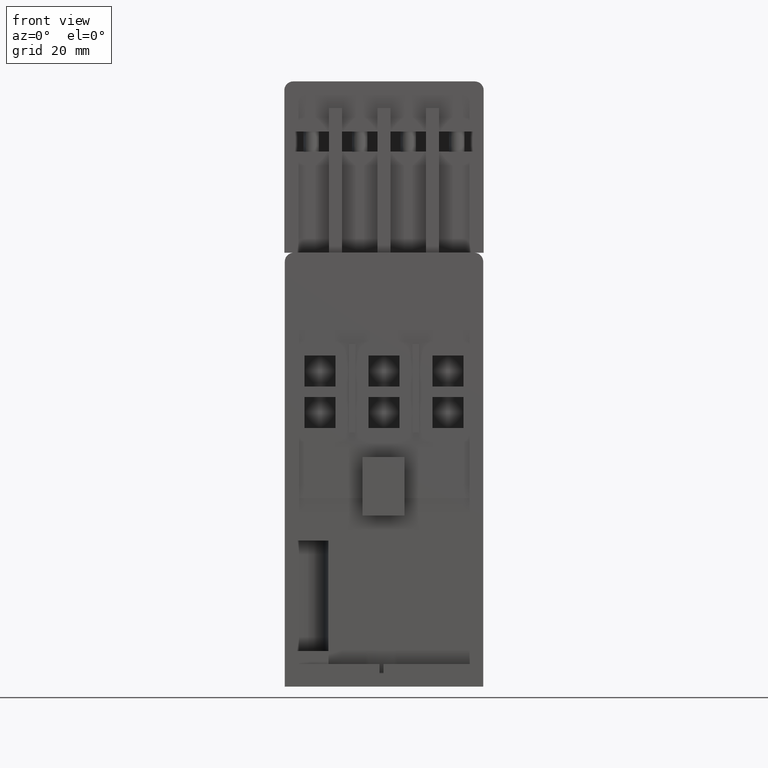
[diagram: clean part render]
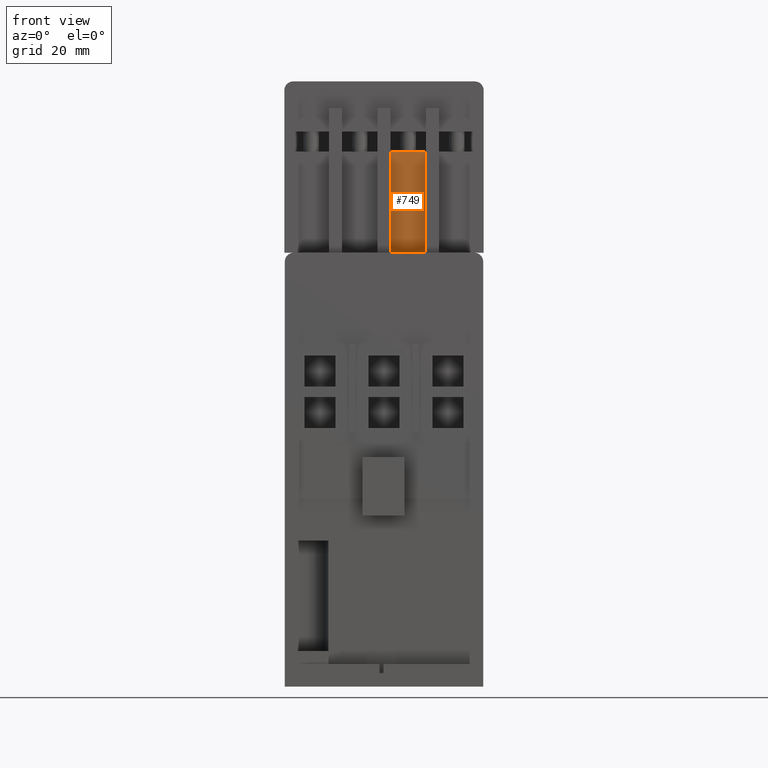
[diagram: same view with one face highlighted and labeled with its STEP entity id]
A machine part, front view. The second image highlights one B-rep face of the part: STEP entity #749.
In plain terms, the highlighted planar face has unit normal (0, 1, 0).
Its self-contained STEP definition (entity closure, byte-faithful):
#749=ADVANCED_FACE('',(#1866),#1334,.F.);
#1334=PLANE('',#12004);
#1866=FACE_OUTER_BOUND('',#2519,.T.);
#2519=EDGE_LOOP('',(#5013,#5014,#5015,#5016));
#5013=ORIENTED_EDGE('',*,*,#8194,.F.);
#5014=ORIENTED_EDGE('',*,*,#8282,.F.);
#5015=ORIENTED_EDGE('',*,*,#7239,.T.);
#5016=ORIENTED_EDGE('',*,*,#8283,.T.);
#6177=VERTEX_POINT('',#15375);
#6178=VERTEX_POINT('',#15377);
#6819=VERTEX_POINT('',#17334);
#6820=VERTEX_POINT('',#17335);
#7239=EDGE_CURVE('',#6178,#6177,#8804,.T.);
#8194=EDGE_CURVE('',#6819,#6820,#9653,.T.);
#8282=EDGE_CURVE('',#6178,#6819,#9705,.T.);
#8283=EDGE_CURVE('',#6177,#6820,#9706,.T.);
#8804=LINE('',#15376,#10155);
#9653=LINE('',#17333,#11004);
#9705=LINE('',#17522,#11056);
#9706=LINE('',#17523,#11057);
#10155=VECTOR('',#12346,1.);
#11004=VECTOR('',#14129,1.);
#11056=VECTOR('',#14279,1.);
#11057=VECTOR('',#14280,1.);
#12004=AXIS2_PLACEMENT_3D('',#17524,#14281,#14282);
#12346=DIRECTION('',(1.,0.,0.));
#14129=DIRECTION('',(1.,0.,0.));
#14279=DIRECTION('',(1.17145334231628E-015,0.,1.));
#14280=DIRECTION('',(1.17145334231628E-015,0.,1.));
#14281=DIRECTION('',(0.,1.,0.));
#14282=DIRECTION('',(0.,0.,1.));
#15375=CARTESIAN_POINT('',(9.39999999999996,-19.8999999999998,92.5));
#15376=CARTESIAN_POINT('',(9.39999999999995,-19.8999999999998,92.5000000000005));
#15377=CARTESIAN_POINT('',(1.49999999999996,-19.8999999999998,92.5));
#17333=CARTESIAN_POINT('',(1.5,-19.8999999999998,115.2));
#17334=CARTESIAN_POINT('',(1.5,-19.8999999999998,115.2));
#17335=CARTESIAN_POINT('',(9.4,-19.8999999999998,115.2));
#17522=CARTESIAN_POINT('',(1.49999999999995,-19.8999999999998,89.25));
#17523=CARTESIAN_POINT('',(9.39999999999995,-19.8999999999998,89.25));
#17524=CARTESIAN_POINT('',(-22.4,-19.8999999999998,125.));